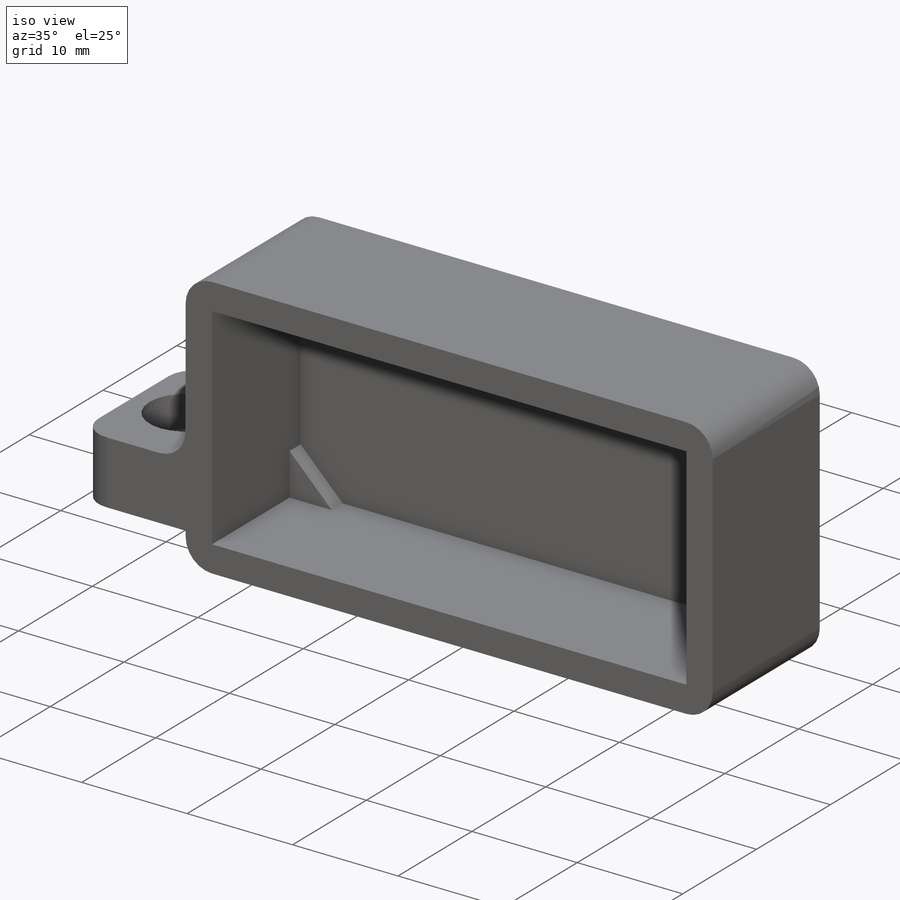
[diagram: iso view]
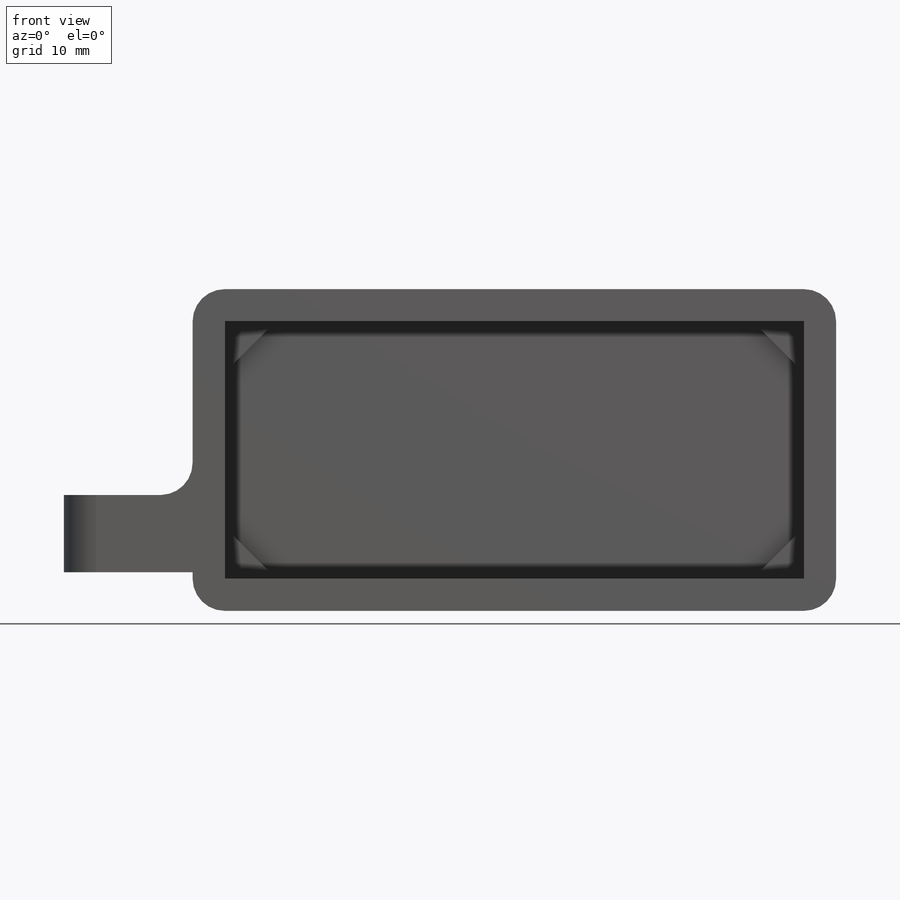
[diagram: front view]
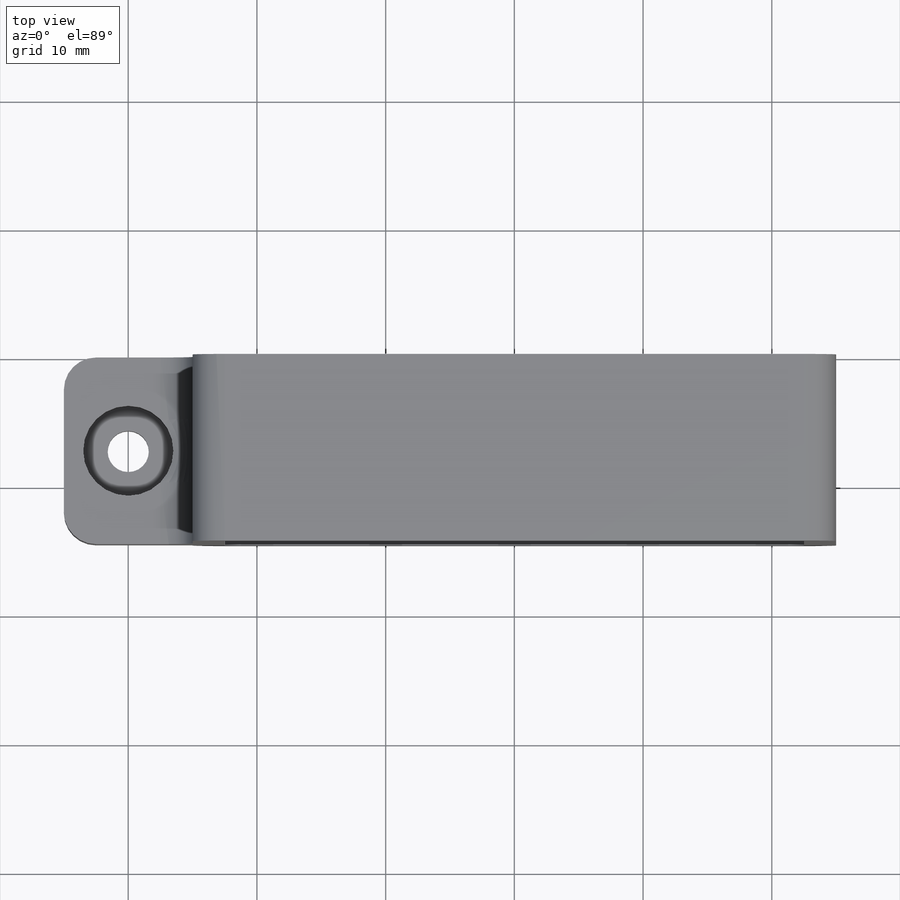
[diagram: top view]
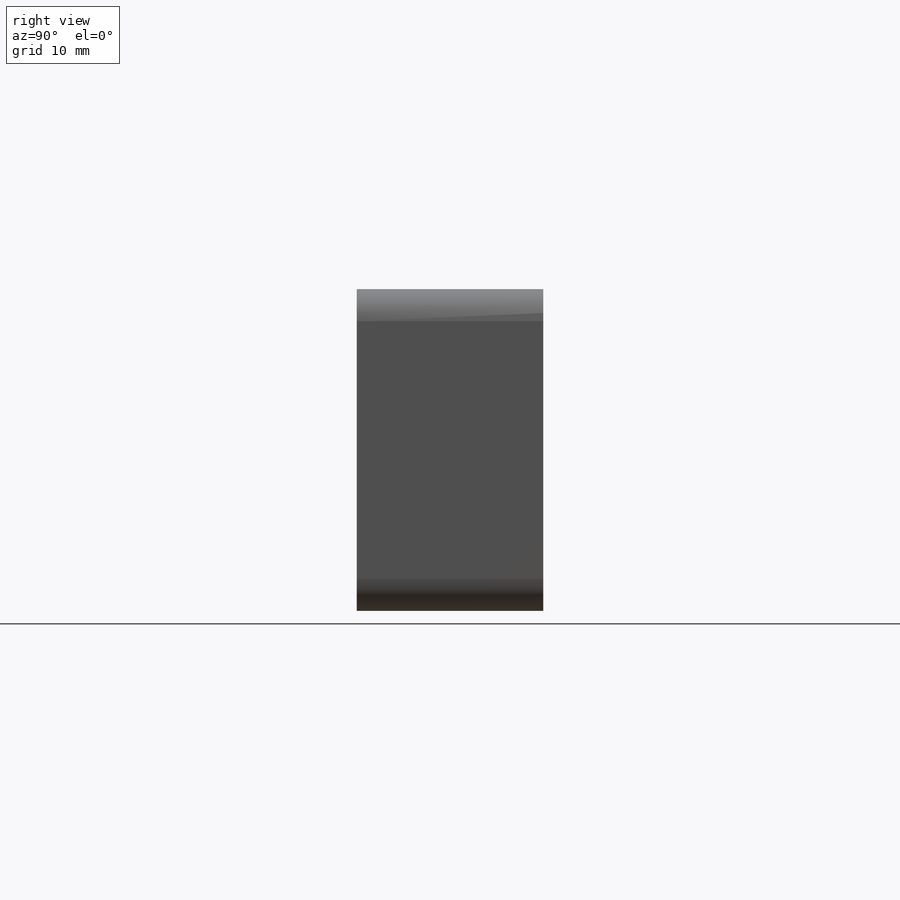
[diagram: right view]
SOLIDWORKS PART (.sldprt)
format: sldprt  version: not decoded by parser v0  size: 501,248 bytes
history: native  units: mm
features: sketch x9, extrude x5, cut_extrude x4, fillet x2, material x1 (+11 scaffold rows collapsed)
feature tree (32):
  scaffold x11  (default folders/planes/origin — collapsed)
  material  "Material <not specified>"
  sketch  "Sketch1"  dims[c1.D1=~44.718933mm c1.D2=~100.07034mm c2.D1=25.0mm c2.D2=50.0mm]
  extrude  "Boss-Extrude1"  Depth=2.5mm
  sketch  "Sketch2"  dims[c1.D1=~16.975366mm c1.D2=~37.308496mm c2.D1=2.5mm c2.D2=2.5mm c2.D3=25.0mm c2.D4=50.0mm]
  extrude  "Boss-Extrude2"  Depth=12mm
  sketch  "Sketch4"  dims[D1=4.0mm]
  extrude  "Boss-Extrude3"  Depth=1.5mm
  sketch  "Sketch5"  dims[c1.D1=~6.437544mm c1.D2=14.5mm c2.D1=3.0mm c2.D2=6.0mm]
  extrude  "Boss-Extrude4"  Depth=10mm
  sketch  "Sketch6"  dims[D1=3.2mm]
  cut_extrude  "Cut-Extrude1"  [1 undecoded]
  sketch  "Sketch7"  dims[D1=7.0mm]
  cut_extrude  "Cut-Extrude2"  Depth=3mm
  fillet  "Fillet1"  Radius=2.5mm
  sketch  "Sketch8"  dims[c1.D1=~5.391443mm c1.D2=14.5mm c2.D1=3.0mm c2.D2=6.0mm]
  extrude  "Boss-Extrude5"  Depth=10mm
  sketch  "Sketch9"  dims[D1=3.2mm]
  cut_extrude  "Cut-Extrude3"  [1 undecoded]
  sketch  "Sketch10"  dims[D1=7.0mm]
  cut_extrude  "Cut-Extrude4"  Depth=3mm
  fillet  "Fillet2"  Radius=2.5mm
decode coverage: 18 of 20 modeling features carry decoded parameters
note: ~ marks probable driven/reference dimensions
note: 2 parameter values undecoded
note: suppression state not decoded; provenance and decode notes live in map.json
